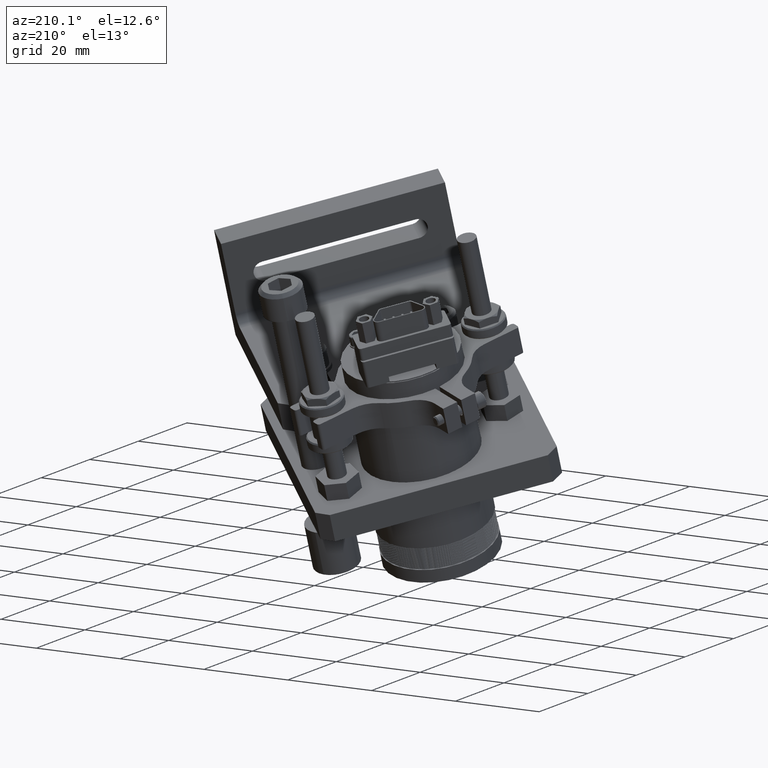
[diagram: clean part render]
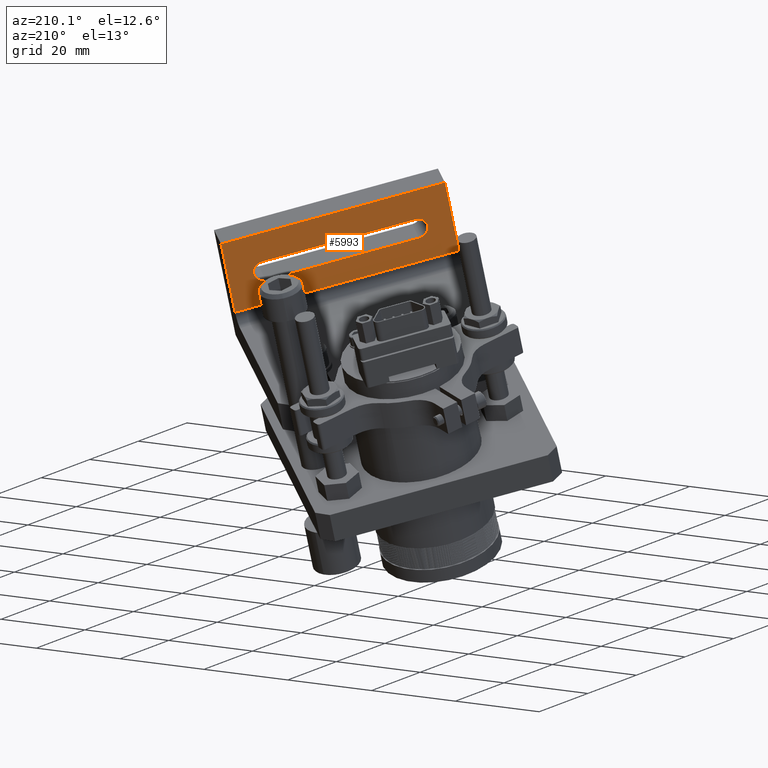
[diagram: same view with one face highlighted and labeled with its STEP entity id]
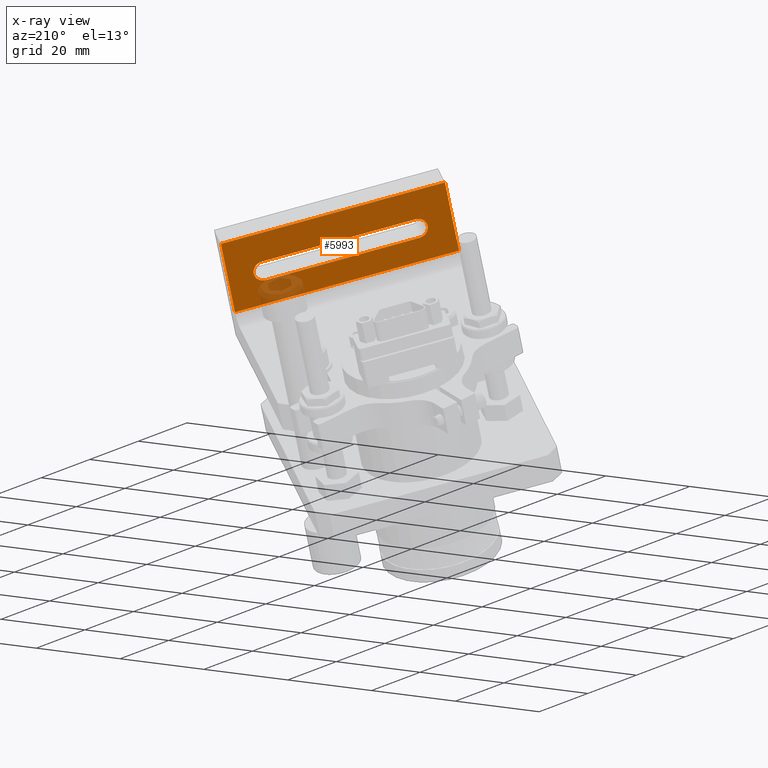
[diagram: x-ray of the same camera — body ghosted, the highlighted face saturated]
A machine part, auxiliary view. The second image highlights one B-rep face of the part: STEP entity #5993.
The next image is the same camera in x-ray: the body ghosted, the highlighted face saturated — about 7% of this face is hidden behind the body in this view.
In plain terms, the highlighted planar face has unit normal (0.6685, -0.6996, 0.2521).
Its self-contained STEP definition (entity closure, byte-faithful):
#2021 = EDGE_LOOP ( 'NONE', ( #13199, #13196, #13195, #13193 ) ) ;
#2102 = EDGE_LOOP ( 'NONE', ( #13221, #13217, #13211, #13205, #13202 ) ) ;
#3590 = VERTEX_POINT ( 'NONE', #10719 ) ;
#3591 = VERTEX_POINT ( 'NONE', #10720 ) ;
#3620 = VERTEX_POINT ( 'NONE', #10749 ) ;
#3629 = VERTEX_POINT ( 'NONE', #10758 ) ;
#3631 = VERTEX_POINT ( 'NONE', #10760 ) ;
#3641 = VERTEX_POINT ( 'NONE', #10770 ) ;
#3654 = VERTEX_POINT ( 'NONE', #10783 ) ;
#3662 = VERTEX_POINT ( 'NONE', #10791 ) ;
#3669 = VERTEX_POINT ( 'NONE', #10798 ) ;
#5993 = ADVANCED_FACE ( 'NONE', ( #8776, #8777 ), #11057, .F. ) ;
#7584 = AXIS2_PLACEMENT_3D ( 'NONE', #11058, #11059, #11060 ) ;
#7934 = AXIS2_PLACEMENT_3D ( 'NONE', #12538, #12539, #12540 ) ;
#7979 = AXIS2_PLACEMENT_3D ( 'NONE', #12937, #12938, #12939 ) ;
#7980 = AXIS2_PLACEMENT_3D ( 'NONE', #12942, #12943, #12944 ) ;
#8776 = FACE_BOUND ( 'NONE', #2102, .T. ) ;
#8777 = FACE_OUTER_BOUND ( 'NONE', #2021, .T. ) ;
#9435 = CIRCLE ( 'NONE', #7934, 0.08850000000000002300 ) ;
#10719 = CARTESIAN_POINT ( 'NONE',  ( 1.000000000000000000, 0.2500000000000000000, -0.9500000000000000700 ) ) ;
#10720 = CARTESIAN_POINT ( 'NONE',  ( 0.6507057191019578500, 0.2500000000000000000, 0.7400508158396218400 ) ) ;
#10749 = CARTESIAN_POINT ( 'NONE',  ( 0.3500000000000002600, 0.2500000000000000000, -0.9500000000000000700 ) ) ;
#10758 = CARTESIAN_POINT ( 'NONE',  ( 0.5622057191019579300, 0.2500000000000000000, 0.6515508158396218200 ) ) ;
#10760 = CARTESIAN_POINT ( 'NONE',  ( 0.7392057191019577600, 0.2500000000000000000, 0.6515508158396218200 ) ) ;
#10770 = CARTESIAN_POINT ( 'NONE',  ( 1.000000000000000000, 0.2500000000000000000, 0.9500000000000000700 ) ) ;
#10783 = CARTESIAN_POINT ( 'NONE',  ( 0.5622057191019577100, 0.2500000000000000000, -0.6484491841603782200 ) ) ;
#10791 = CARTESIAN_POINT ( 'NONE',  ( 0.3500000000000002600, 0.2500000000000000000, 0.9500000000000000700 ) ) ;
#10798 = CARTESIAN_POINT ( 'NONE',  ( 0.7392057191019577600, 0.2500000000000000000, -0.6484491841603782200 ) ) ;
#11057 = PLANE ( 'NONE',  #7584 ) ;
#11058 = CARTESIAN_POINT ( 'NONE',  ( 0.2500000000000002200, 0.2500000000000000000, 0.9500000000000000700 ) ) ;
#11059 = DIRECTION ( 'NONE',  ( 0.0000000000000000000, -1.000000000000000000, 0.0000000000000000000 ) ) ;
#11060 = DIRECTION ( 'NONE',  ( 0.0000000000000000000, -0.0000000000000000000, -1.000000000000000000 ) ) ;
#12538 = CARTESIAN_POINT ( 'NONE',  ( 0.6507057191019578500, 0.2500000000000000000, 0.6515508158396218200 ) ) ;
#12539 = DIRECTION ( 'NONE',  ( 0.0000000000000000000, 1.000000000000000000, 0.0000000000000000000 ) ) ;
#12540 = DIRECTION ( 'NONE',  ( 0.0000000000000000000, 0.0000000000000000000, 1.000000000000000000 ) ) ;
#12931 = CARTESIAN_POINT ( 'NONE',  ( 1.000000000000000000, 0.2500000000000000000, 0.9500000000000000700 ) ) ;
#12932 = DIRECTION ( 'NONE',  ( -0.0000000000000000000, -0.0000000000000000000, -1.000000000000000000 ) ) ;
#12935 = CARTESIAN_POINT ( 'NONE',  ( 0.5622057191019577100, 0.2500000000000000000, -0.6484491841603782200 ) ) ;
#12936 = DIRECTION ( 'NONE',  ( 1.050710766793947400E-016, 0.0000000000000000000, 1.000000000000000000 ) ) ;
#12937 = CARTESIAN_POINT ( 'NONE',  ( 0.6507057191019577400, 0.2500000000000000000, -0.6484491841603782200 ) ) ;
#12938 = DIRECTION ( 'NONE',  ( 0.0000000000000000000, 1.000000000000000000, 0.0000000000000000000 ) ) ;
#12939 = DIRECTION ( 'NONE',  ( 0.0000000000000000000, 0.0000000000000000000, 1.000000000000000000 ) ) ;
#12940 = CARTESIAN_POINT ( 'NONE',  ( 0.7392057191019577600, 0.2500000000000000000, -0.6484491841603782200 ) ) ;
#12941 = DIRECTION ( 'NONE',  ( -0.0000000000000000000, -0.0000000000000000000, -1.000000000000000000 ) ) ;
#12942 = CARTESIAN_POINT ( 'NONE',  ( 0.6507057191019578500, 0.2500000000000000000, 0.6515508158396218200 ) ) ;
#12943 = DIRECTION ( 'NONE',  ( 0.0000000000000000000, 1.000000000000000000, 0.0000000000000000000 ) ) ;
#12944 = DIRECTION ( 'NONE',  ( 0.0000000000000000000, 0.0000000000000000000, 1.000000000000000000 ) ) ;
#12945 = CARTESIAN_POINT ( 'NONE',  ( 0.2500000000000002200, 0.2500000000000000000, -0.9500000000000000700 ) ) ;
#12946 = DIRECTION ( 'NONE',  ( -1.000000000000000000, -0.0000000000000000000, -0.0000000000000000000 ) ) ;
#12947 = CARTESIAN_POINT ( 'NONE',  ( 0.3500000000000002600, 0.2500000000000000000, 0.9500000000000000700 ) ) ;
#12948 = DIRECTION ( 'NONE',  ( -0.0000000000000000000, -0.0000000000000000000, 1.000000000000000000 ) ) ;
#12949 = CARTESIAN_POINT ( 'NONE',  ( 0.2500000000000002200, 0.2500000000000000000, 0.9500000000000000700 ) ) ;
#12950 = DIRECTION ( 'NONE',  ( -1.000000000000000000, -0.0000000000000000000, -0.0000000000000000000 ) ) ;
#13193 = ORIENTED_EDGE ( 'NONE', *, *, #16883, .T. ) ;
#13195 = ORIENTED_EDGE ( 'NONE', *, *, #16891, .F. ) ;
#13196 = ORIENTED_EDGE ( 'NONE', *, *, #16890, .T. ) ;
#13199 = ORIENTED_EDGE ( 'NONE', *, *, #16889, .T. ) ;
#13202 = ORIENTED_EDGE ( 'NONE', *, *, #16888, .F. ) ;
#13205 = ORIENTED_EDGE ( 'NONE', *, *, #16724, .F. ) ;
#13211 = ORIENTED_EDGE ( 'NONE', *, *, #16887, .F. ) ;
#13217 = ORIENTED_EDGE ( 'NONE', *, *, #16886, .F. ) ;
#13221 = ORIENTED_EDGE ( 'NONE', *, *, #16885, .F. ) ;
#14228 = LINE ( 'NONE', #12931, #14229 ) ;
#14229 = VECTOR ( 'NONE', #12932, 39.37007874015748100 ) ;
#14232 = LINE ( 'NONE', #12935, #14233 ) ;
#14233 = VECTOR ( 'NONE', #12936, 39.37007874015748100 ) ;
#14234 = LINE ( 'NONE', #12940, #14236 ) ;
#14235 = CIRCLE ( 'NONE', #7979, 0.08850000000000002300 ) ;
#14236 = VECTOR ( 'NONE', #12941, 39.37007874015748100 ) ;
#14237 = LINE ( 'NONE', #12945, #14239 ) ;
#14238 = CIRCLE ( 'NONE', #7980, 0.08850000000000002300 ) ;
#14239 = VECTOR ( 'NONE', #12946, 39.37007874015748100 ) ;
#14240 = LINE ( 'NONE', #12947, #14241 ) ;
#14241 = VECTOR ( 'NONE', #12948, 39.37007874015748100 ) ;
#14242 = LINE ( 'NONE', #12949, #14243 ) ;
#14243 = VECTOR ( 'NONE', #12950, 39.37007874015748100 ) ;
#16724 = EDGE_CURVE ( 'NONE', #3591, #3631, #9435, .T. ) ;
#16883 = EDGE_CURVE ( 'NONE', #3641, #3590, #14228, .T. ) ;
#16885 = EDGE_CURVE ( 'NONE', #3654, #3629, #14232, .T. ) ;
#16886 = EDGE_CURVE ( 'NONE', #3669, #3654, #14235, .T. ) ;
#16887 = EDGE_CURVE ( 'NONE', #3631, #3669, #14234, .T. ) ;
#16888 = EDGE_CURVE ( 'NONE', #3629, #3591, #14238, .T. ) ;
#16889 = EDGE_CURVE ( 'NONE', #3590, #3620, #14237, .T. ) ;
#16890 = EDGE_CURVE ( 'NONE', #3620, #3662, #14240, .T. ) ;
#16891 = EDGE_CURVE ( 'NONE', #3641, #3662, #14242, .T. ) ;